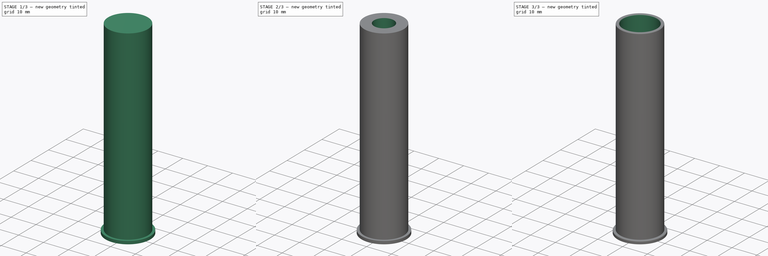
[diagram: build sequence overview — one tinted view per stage of 3, left to right]
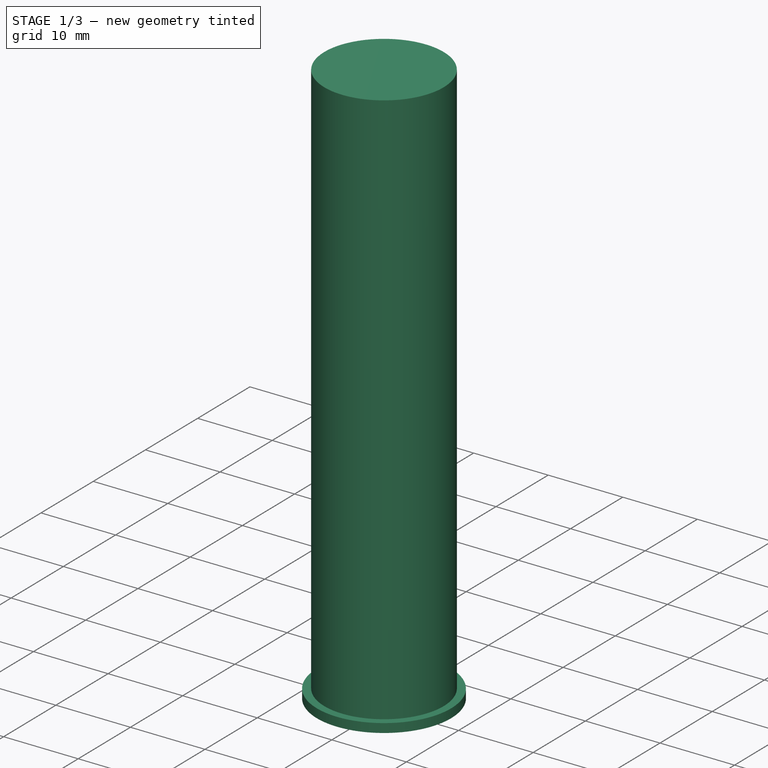
[diagram: stage 1 of 3 — iso view after this stage's code; geometry added in this stage tinted green]
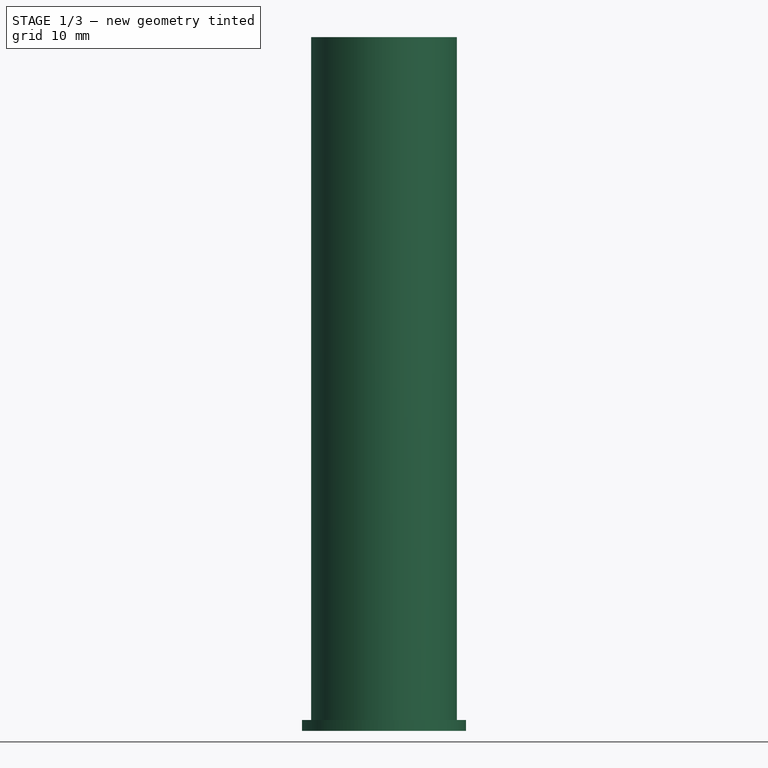
[diagram: stage 1 of 3 — front view after this stage's code; geometry added in this stage tinted green]
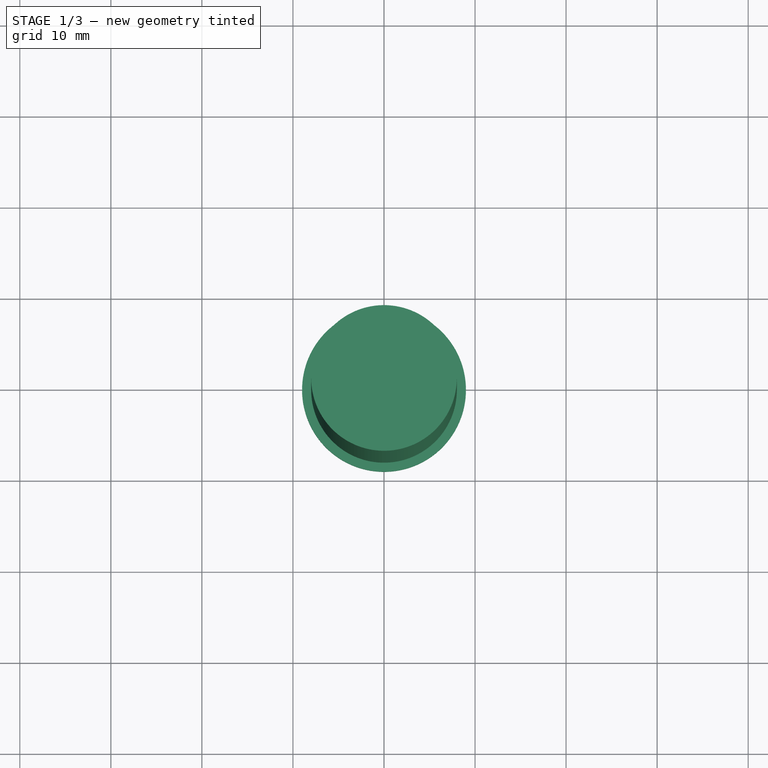
[diagram: stage 1 of 3 — top view after this stage's code; geometry added in this stage tinted green]
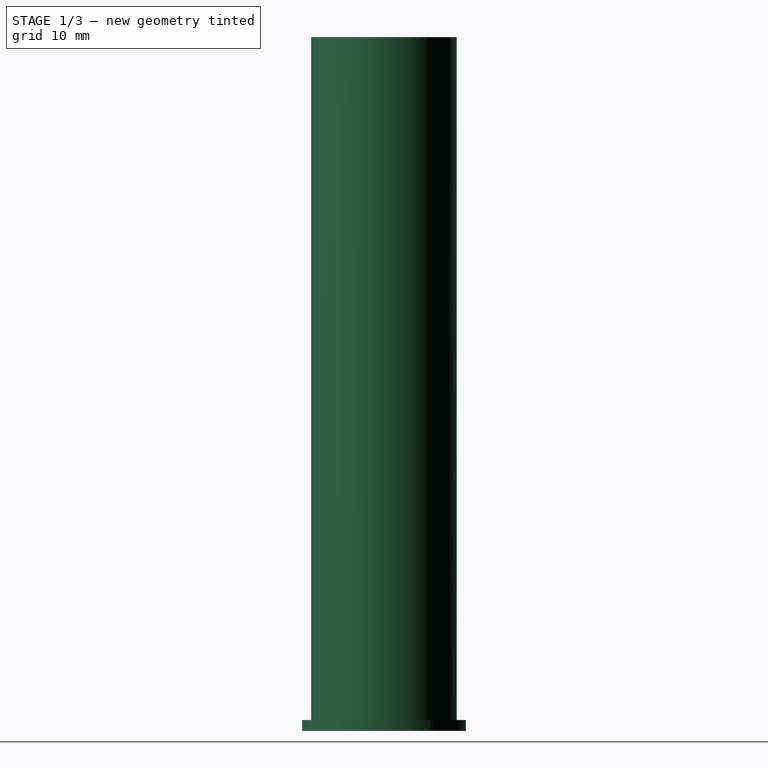
[diagram: stage 1 of 3 — right view after this stage's code; geometry added in this stage tinted green]
FCSTD DOCUMENT  (FreeCAD 0.19R24267 +99 (Git))
Label: classicDartShell
License: All rights reserved
LicenseURL: http://en.wikipedia.org/wiki/All_rights_reserved
objects: PartDesign::AdditiveCylinder×2, PartDesign::SubtractiveCylinder×2, Sketcher::SketchObject×1, PartDesign::Body×1, App::Part×1, Part::Fillet×1
note: 11 computed .brp shape members not serialized (recipe doc carries the construction recipe); baked Part::Feature solids carry a one-line shape summary decoded from their .brp

FEATURE [Sketcher::SketchObject] Sketch
  FullyConstrained = false
  MapMode = 5
  Support = -> [XY_Plane001]
  expr: .Constraints.R_shell_outside = .Constraints.R_shell_inside + .Constraints.shell_wall
  expr: .Constraints.R_shell_w_rim = .Constraints.R_shell_outside + .Constraints.shell_rim
  sketch-geometry (7):
    g0: Circle CenterX=0 CenterY=0 CenterZ=0 NormalX=0 NormalY=0 NormalZ=1 AngleXU=0 Radius=6.8
    g1: Circle CenterX=0 CenterY=0 CenterZ=0 NormalX=0 NormalY=0 NormalZ=1 AngleXU=0 Radius=8
    g2: Circle CenterX=0 CenterY=0 CenterZ=0 NormalX=0 NormalY=0 NormalZ=1 AngleXU=0 Radius=9
    g3: LineSegment StartX=11.8045 StartY=31.3012 StartZ=0 EndX=12.6931 EndY=30.4948 EndZ=0
    g4: LineSegment StartX=50.0761 StartY=0 StartZ=0 EndX=50.0761 EndY=1 EndZ=0
    g5: Circle CenterX=0 CenterY=0 CenterZ=0 NormalX=0 NormalY=0 NormalZ=1 AngleXU=0 Radius=4
    g6: LineSegment StartX=-54.7066 StartY=-15.7953 StartZ=0 EndX=-18.4126 EndY=49.8382 EndZ=0
  constraints (13):
    c: Coincident(g0,g-1)
    c: Coincident(g1,g0)
    c: Coincident(g2,g0)
    c: Radius(g0) = 6.8  'R_shell_inside'
    c: Distance(g3) = 1.2  'shell_wall'
    c: Radius(g1) = 8  'R_shell_outside'
    c: PointOnObject(g4,g-1)
    c: Vertical(g4)
    c: Distance(g4) = 1  'shell_rim'
    c: Radius(g2) = 9  'R_shell_w_rim'
    c: Coincident(g5,g0)
    c: Radius(g5) = 4  'R_air_hole'
    c: Distance(g6) = 75  'shell_height'
FEATURE [PartDesign::AdditiveCylinder] Cylinder  label="Rim"
  Angle = 360
  AttacherType = Attacher::AttachEngine3D
  Height = 1.2
  MapMode = 5
  Radius = 9
  Support = -> [XY_Plane001]
  expr: Radius = Sketch.Constraints.R_shell_w_rim
  expr: Height = Sketch.Constraints.shell_wall
FEATURE [PartDesign::AdditiveCylinder] Cylinder001  label="Shell_body"
  Angle = 360
  AttacherType = Attacher::AttachEngine3D
  AttachmentOffset = pos=(0,0,1.2) rot=(0,0,1;0rad)
  BaseFeature = -> Cylinder
  Height = 75
  MapMode = 5
  Placement = pos=(0,0,1.2) rot=(0,0,1;0rad)
  Radius = 8
  Support = -> [XY_Plane001]
  expr: Radius = Sketch.Constraints.R_shell_outside
  expr: .AttachmentOffset.Base.z = Sketch.Constraints.shell_wall
  expr: Height = Sketch.Constraints.shell_height
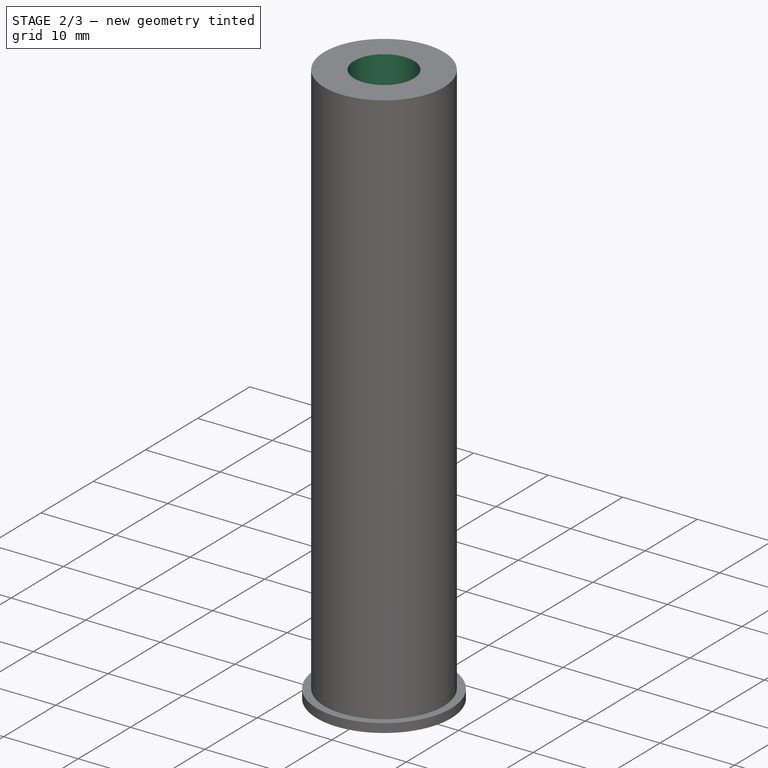
[diagram: stage 2 of 3 — iso view after this stage's code; geometry added in this stage tinted green]
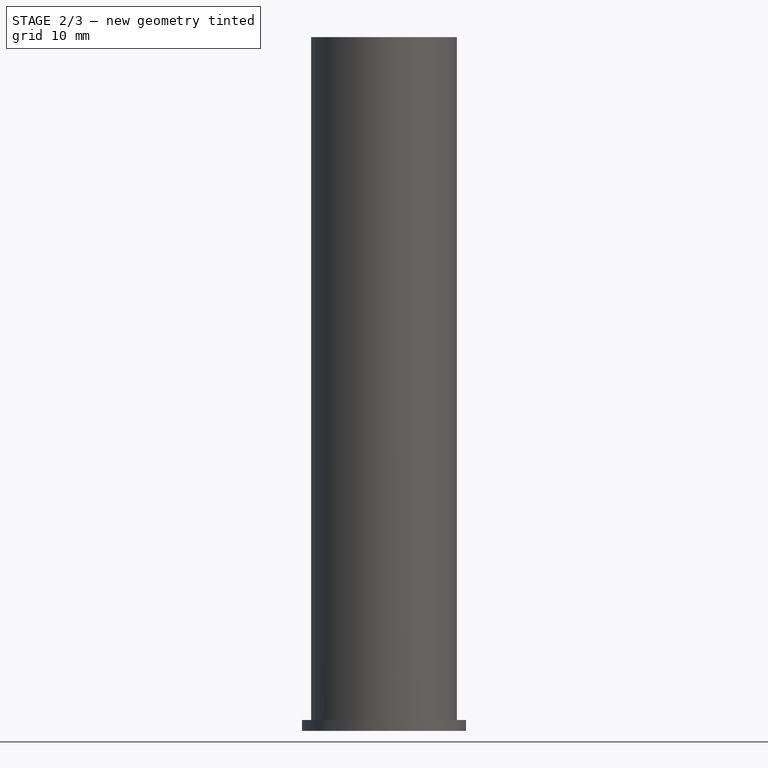
[diagram: stage 2 of 3 — front view after this stage's code; geometry added in this stage tinted green]
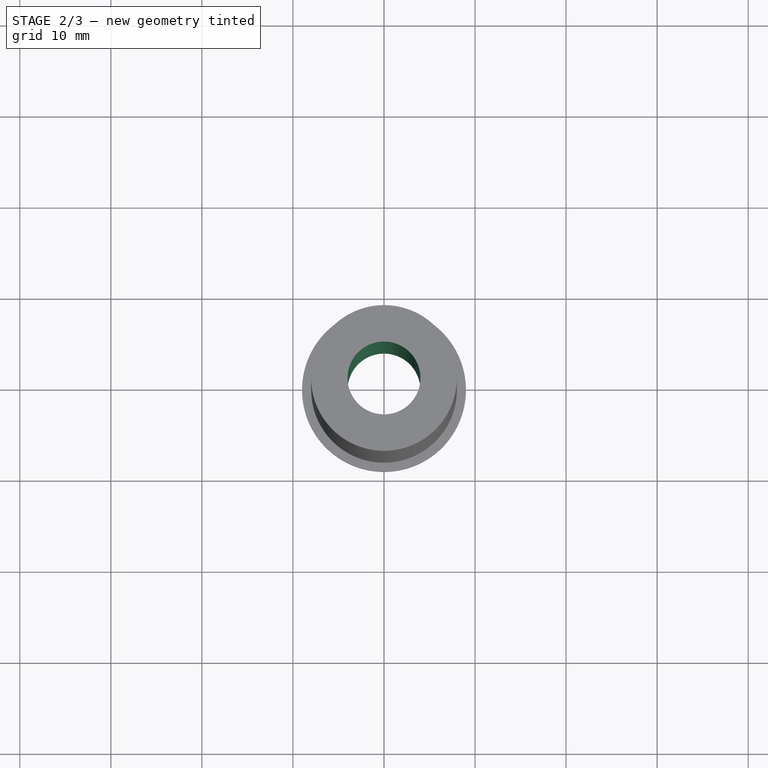
[diagram: stage 2 of 3 — top view after this stage's code; geometry added in this stage tinted green]
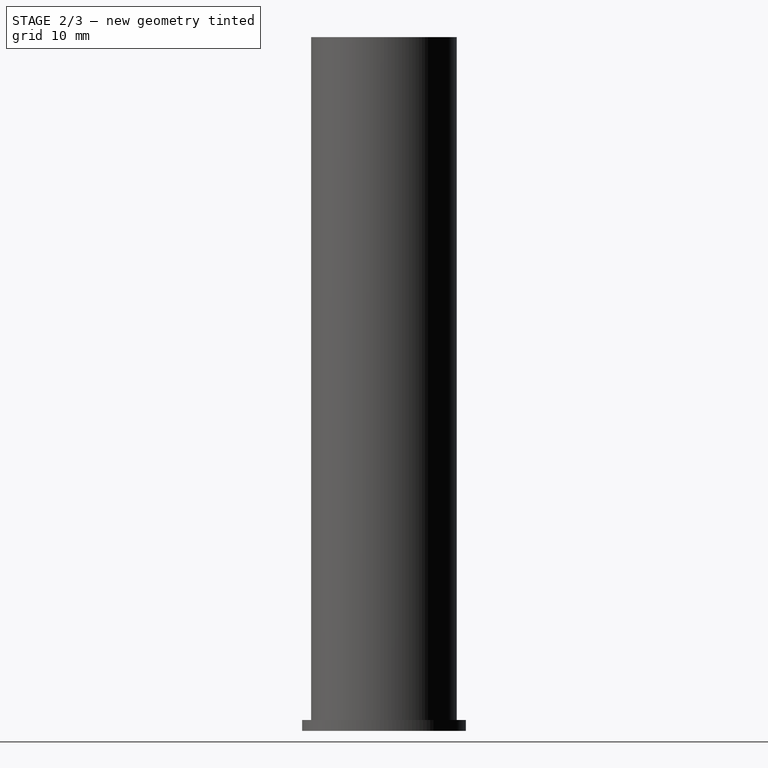
[diagram: stage 2 of 3 — right view after this stage's code; geometry added in this stage tinted green]
FEATURE [PartDesign::SubtractiveCylinder] Cylinder002
  Angle = 360
  AttacherType = Attacher::AttachEngine3D
  BaseFeature = -> Cylinder001
  Height = 76.2
  MapMode = 5
  Radius = 4
  Support = -> [XY_Plane001]
  expr: Radius = Sketch.Constraints.R_air_hole
  expr: Height = <<Shell_body>>.Height + Sketch.Constraints.shell_wall
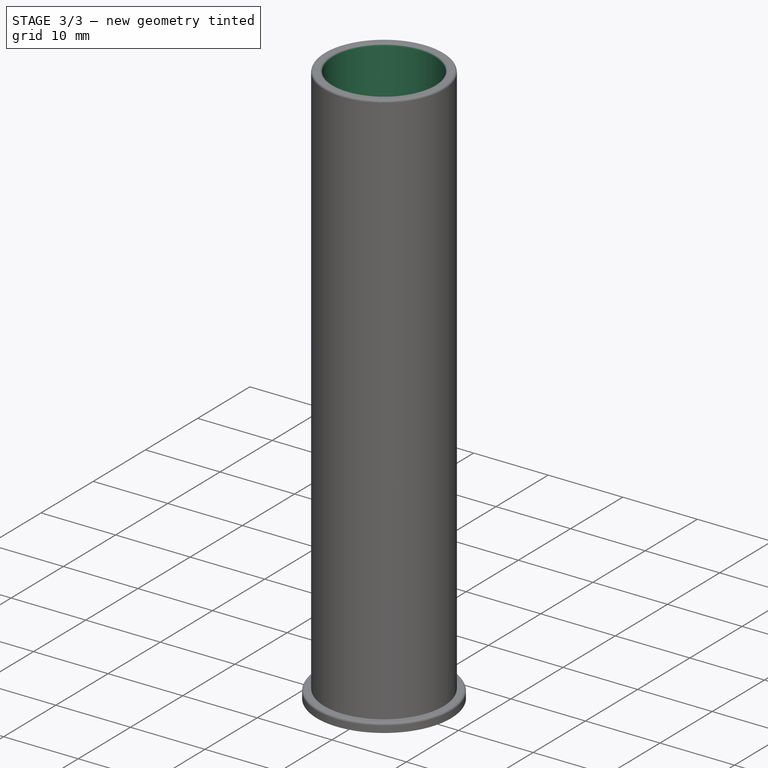
[diagram: stage 3 of 3 — iso view after this stage's code; geometry added in this stage tinted green]
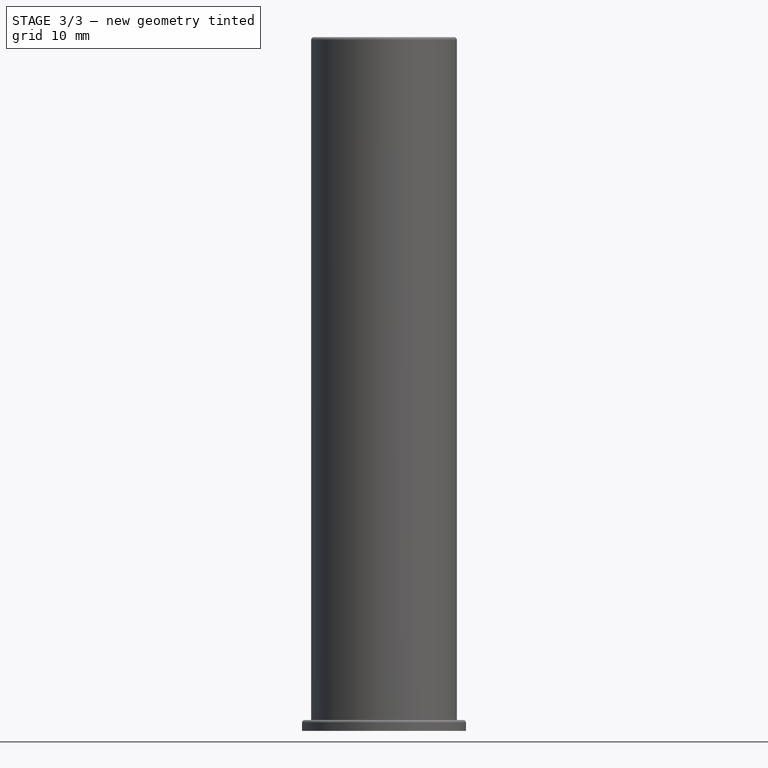
[diagram: stage 3 of 3 — front view after this stage's code; geometry added in this stage tinted green]
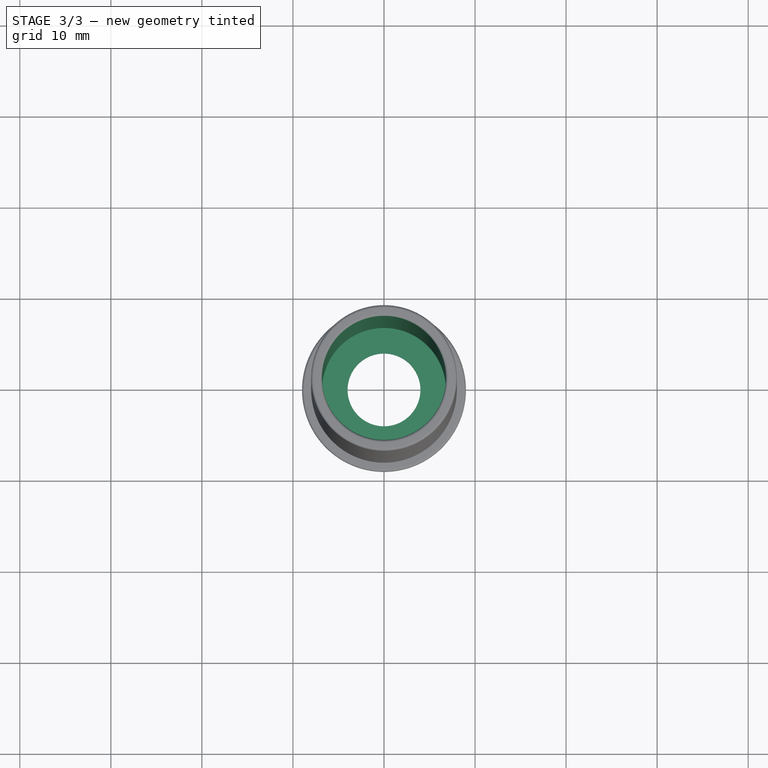
[diagram: stage 3 of 3 — top view after this stage's code; geometry added in this stage tinted green]
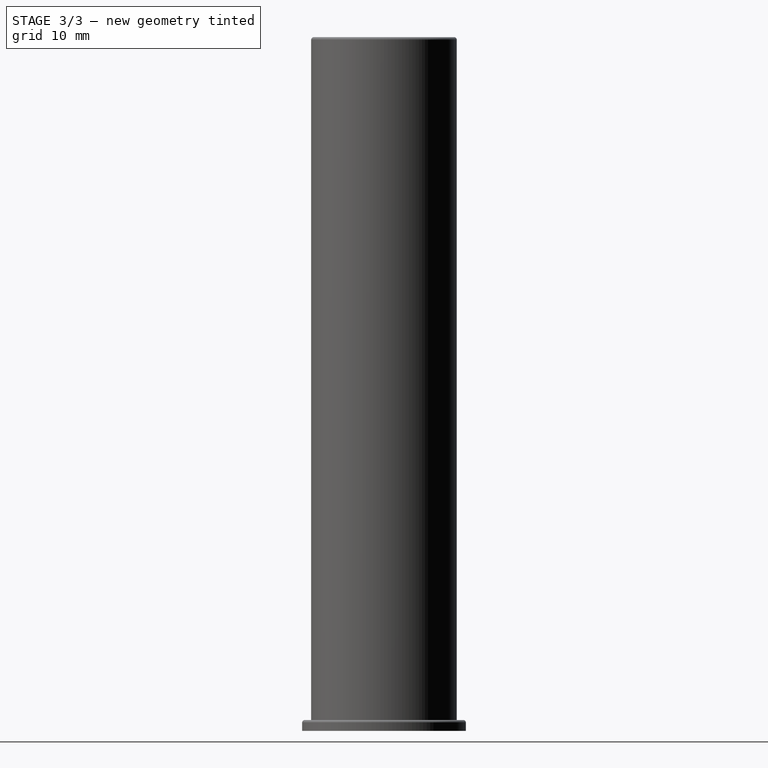
[diagram: stage 3 of 3 — right view after this stage's code; geometry added in this stage tinted green]
FEATURE [PartDesign::SubtractiveCylinder] Cylinder003
  Angle = 360
  AttacherType = Attacher::AttachEngine3D
  AttachmentOffset = pos=(0,0,1.2) rot=(0,0,1;0rad)
  BaseFeature = -> Cylinder002
  Height = 75
  MapMode = 5
  Placement = pos=(0,0,1.2) rot=(0,0,1;0rad)
  Radius = 6.8
  Support = -> [XY_Plane001]
  expr: Radius = Sketch.Constraints.R_shell_inside
  expr: .AttachmentOffset.Base.z = Sketch.Constraints.shell_wall
  expr: Height = <<Shell_body>>.Height
FEATURE [PartDesign::Body] Body
  Group = -> [Sketch,Cylinder,Cylinder001,Cylinder002,Cylinder003]
  Origin = -> Origin001
  Tip = -> Cylinder003
FEATURE [App::Part] Part
  Group = -> [Body]
  Origin = -> Origin
FEATURE [Part::Fillet] Fillet
  Base = -> Body
  Edges = 3 edges r=0.3: [Edge1,Edge6,Edge10]
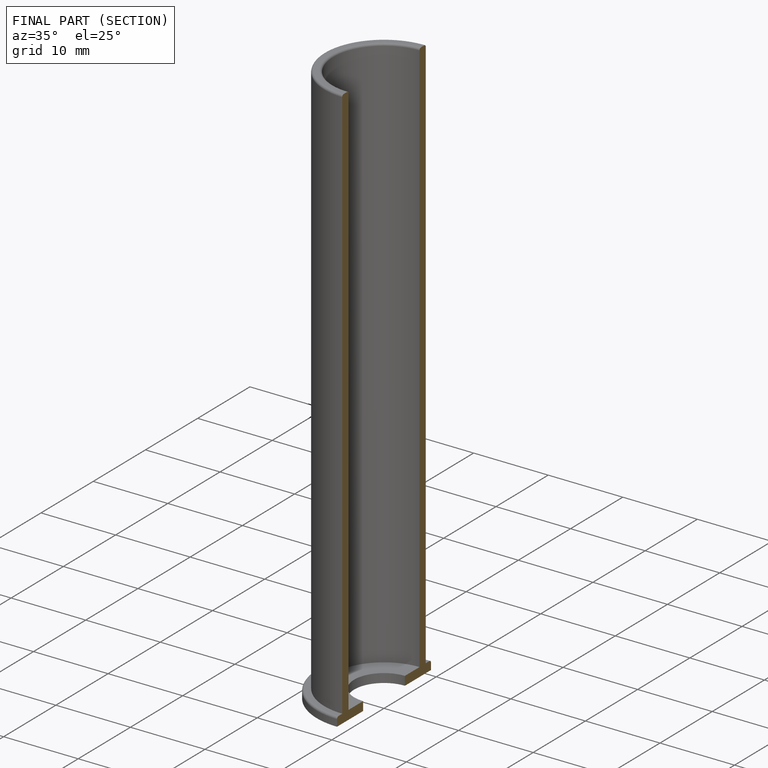
[diagram: finished part — half-section view (interior)]
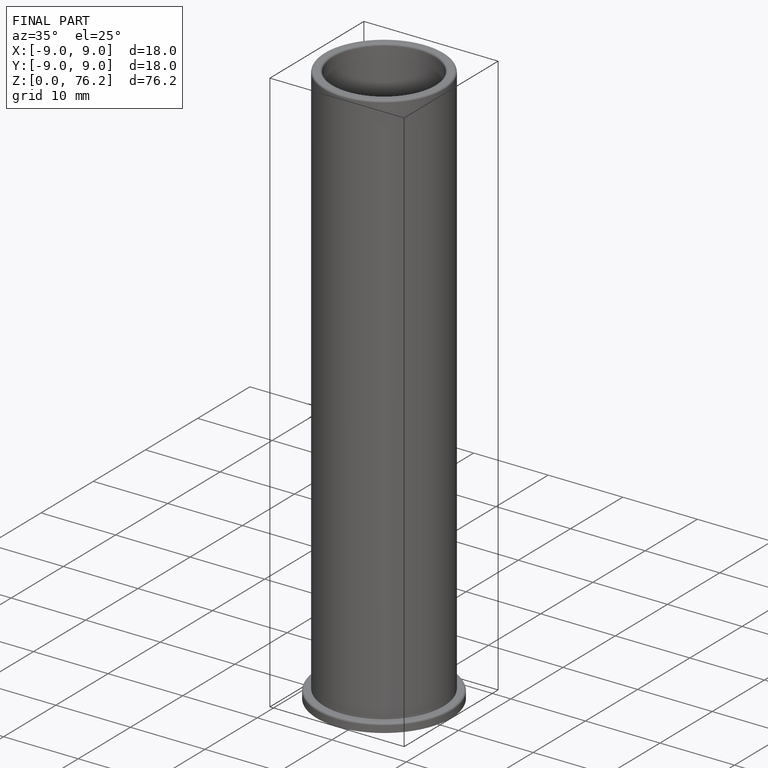
[diagram: finished part — iso view with bounding-box wireframe]
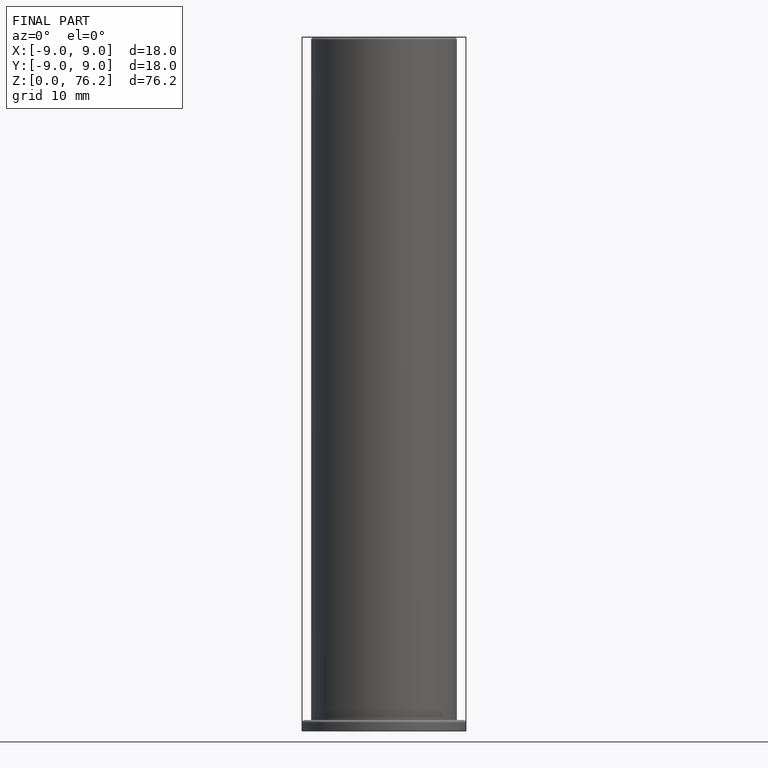
[diagram: finished part — front view with bounding-box wireframe]
